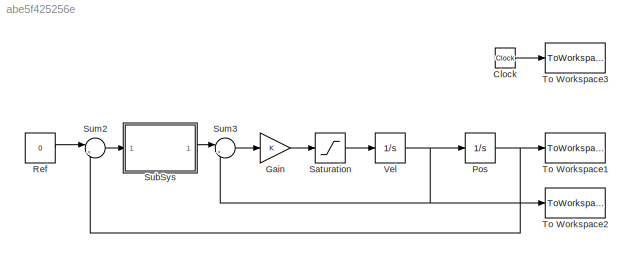
MODEL slx_abe5f425256e
KIND model
CONFIG AbsTol = auto
CONFIG FixedStep = auto
CONFIG MaxStep = auto
CONFIG MinStep = auto
CONFIG RelTol = 1e-3
CONFIG SampleTimeConstraint = Unconstrained
CONFIG Solver = ode45
CONFIG SolverMode = Auto
CONFIG SolverName = ode45
CONFIG StartTime = 0.0
CONFIG StopTime = 10.0
BLOCK [Clock] Clock
BLOCK [Gain] Gain
  Gain = K
  OutDataTypeStr = Inherit: Inherit via internal rule
  ParamDataTypeStr = Inherit: Inherit via internal rule
  SaturateOnIntegerOverflow = off
BLOCK [Integrator] Pos
  InitialCondition = 1
  Ports = [1, 1]
BLOCK [Constant] Ref
  Value = 0
BLOCK [Saturate] Saturation
  InputPortMap = u0
  Ports = [1, 1]
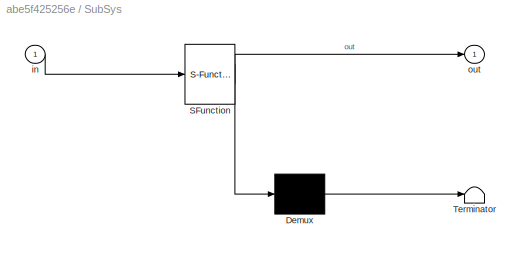
BLOCK [SubSystem] SubSys
  ErrorFcn = Stateflow.Translate.translate
  PermitHierarchicalResolution = ExplicitOnly
  Ports = [1, 1]
  RequestExecContextInheritance = off
  SFBlockType = MATLAB Function
  TreatAsAtomicUnit = on
BLOCK [Demux] SubSys/ Demux 
  Outputs = 1
  Ports = [1, 1]
BLOCK [S-Function] SubSys/ SFunction 
  FunctionName = sf_sfun
  PortCounts = [1 2]
  Ports = [1, 2]
  Tag = Stateflow S-Function quatro_b 2
BLOCK [Terminator] SubSys/ Terminator 
BLOCK [Inport] SubSys/in
  IconDisplay = Port number
BLOCK [Outport] SubSys/out
  IconDisplay = Port number
BLOCK [Sum] Sum2
  IconShape = round
  InputSameDT = off
  Inputs = |+-
  OutDataTypeStr = Inherit: Inherit via internal rule
  Ports = [2, 1]
  SaturateOnIntegerOverflow = off
BLOCK [Sum] Sum3
  IconShape = round
  InputSameDT = off
  Inputs = |+-
  OutDataTypeStr = Inherit: Inherit via internal rule
  Ports = [2, 1]
  SaturateOnIntegerOverflow = off
BLOCK [ToWorkspace] To Workspace1
  MaxDataPoints = inf
  Ports = [1]
  SampleTime = -1
  VariableName = y
BLOCK [ToWorkspace] To Workspace2
  MaxDataPoints = inf
  Ports = [1]
  SampleTime = -1
  VariableName = v
BLOCK [ToWorkspace] To Workspace3
  MaxDataPoints = inf
  Ports = [1]
  SampleTime = -1
  VariableName = t
BLOCK [Integrator] Vel
  Ports = [1, 1]
LINE Clock:1 -> To Workspace3:1
LINE Gain:1 -> Saturation:1
NET Pos:1 -> Sum2:2, To Workspace1:1
LINE Ref:1 -> Sum2:1
LINE Saturation:1 -> Vel:1
LINE SubSys:1 -> Sum3:1
LINE Sum2:1 -> SubSys:1
LINE Sum3:1 -> Gain:1
NET Vel:1 -> Pos:1, Sum3:2, To Workspace2:1
note: NET lines group one-source signal fan-out (src -> all destinations, sorted); 1:1 wires keep LINE
CHART SubSys states=1 transitions=1
  STATE_LABEL 'eML_blk_kernel()'
  STATE_LABEL 'SCRIPT:\nfunction out = f(in)\n\nout = sign(in)*sqrt(2*abs(in));\n\n'
